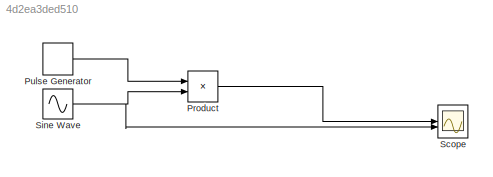
MODEL slx_4d2ea3ded510
KIND model
CONFIG AbsTol = auto
CONFIG EnableMultiTasking = off
CONFIG FixedStep = auto
CONFIG MaxStep = auto
CONFIG MinStep = auto
CONFIG RelTol = 1e-3
CONFIG SampleTimeConstraint = Unconstrained
CONFIG SolverName = VariableStepAuto
CONFIG StartTime = 0.0
CONFIG StopTime = 10.0
BLOCK [Product] Product
  RndMeth = Zero
BLOCK [DiscretePulseGenerator] Pulse Generator
  Period = 0.06
  PulseType = Time based
  PulseWidth = 2
BLOCK [Scope] Scope
  Floating = off
  NumInputPorts = 2
  ScopeSpecificationString = Simulink.scopes.TimeScopeBlockCfg('CurrentConfiguration', extmgr.ConfigurationSet(extmgr.Configuration('Core','General UI',true),extmgr.Configuration('Core','Source UI',true),extmgr.Configuration('Sources','WiredSimulink',true),extmgr.Configuration('Visuals','Time Domain',true,'SerializedDisplays',{struct('MinYLimReal','-3.37399','MaxYLimReal','2.0275','YLabelReal','','MinYLimMag','0.00000','MaxYL...<+1944ch>
BLOCK [Sin] Sine Wave
  Amplitude = 5
  SampleTime = 0
LINE Product:1 -> Scope:1
LINE Pulse Generator:1 -> Product:1
NET Sine Wave:1 -> Product:2, Scope:2
note: NET lines group one-source signal fan-out (src -> all destinations, sorted); 1:1 wires keep LINE
